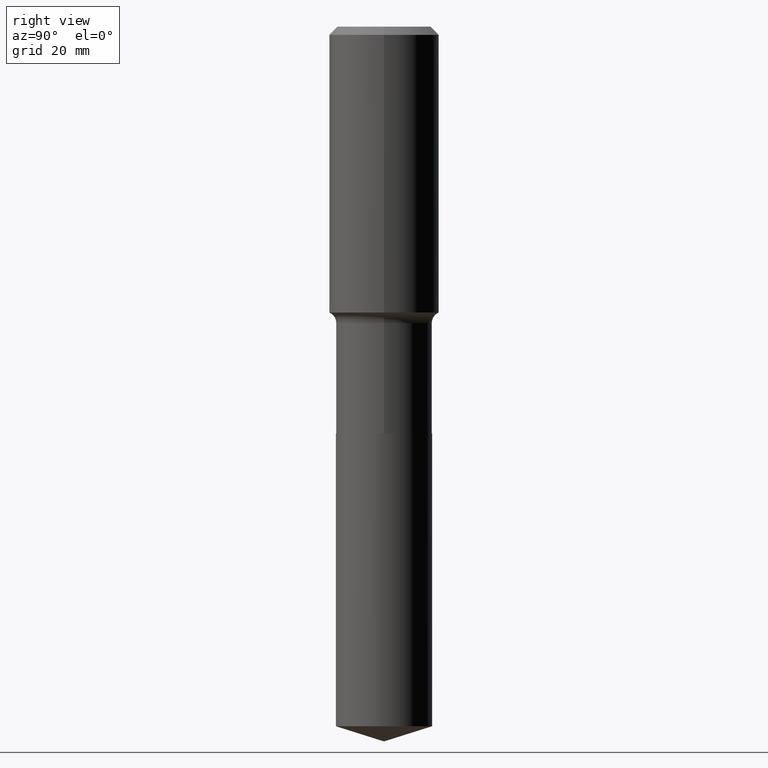
[diagram: clean part render]
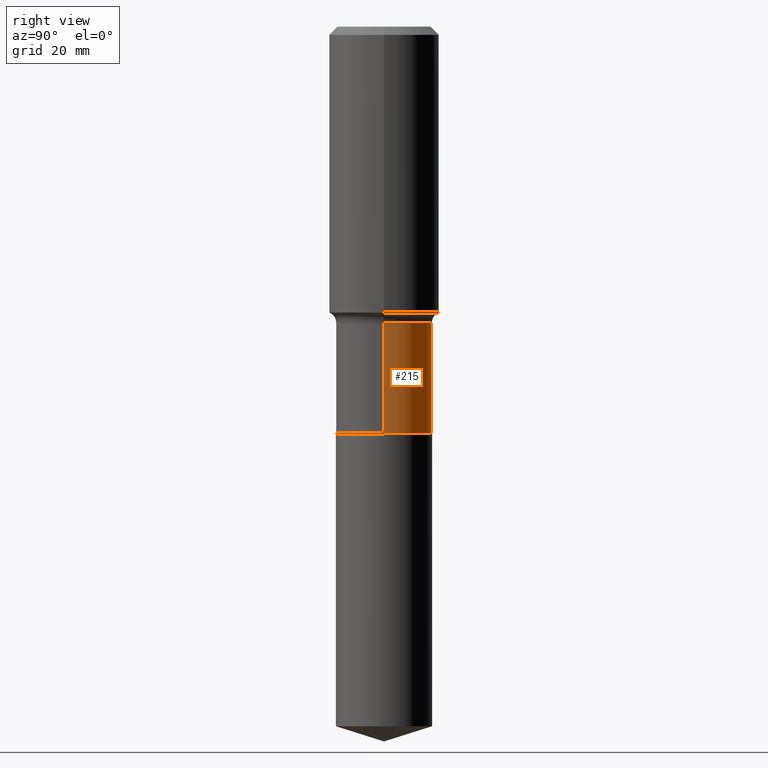
[diagram: same view with one face highlighted and labeled with its STEP entity id]
A machine part, right view. The second image highlights one B-rep face of the part: STEP entity #215.
In plain terms, the highlighted cylindrical surface (partial cylindrical patch) has radius 8.3337 mm, axis along (-0, 0, 1).
Its self-contained STEP definition (entity closure, byte-faithful):
#3 = CARTESIAN_POINT ( 'NONE',  ( -0.3280999999999998917, 2.331290716028887941E-15, -1.613902603112634153E-29 ) ) ;
#26 = CARTESIAN_POINT ( 'NONE',  ( -0.3280999999999998917, -6.043550997387220874E-15, -2.775699999999999612 ) ) ;
#33 = VECTOR ( 'NONE', #166, 39.37007874015748143 ) ;
#66 = CYLINDRICAL_SURFACE ( 'NONE', #185, 0.3280999999999998917 ) ;
#67 = EDGE_CURVE ( 'NONE', #274, #204, #330, .T. ) ;
#70 = DIRECTION ( 'NONE',  ( -2.445468806185136597E-29, 3.491481338843145583E-15, 1.000000000000000000 ) ) ;
#79 = DIRECTION ( 'NONE',  ( 1.000000000000000000, -6.982962677686269077E-15, 0.000000000000000000 ) ) ;
#97 = EDGE_CURVE ( 'NONE', #328, #450, #127, .T. ) ;
#116 = ORIENTED_EDGE ( 'NONE', *, *, #467, .F. ) ;
#127 = CIRCLE ( 'NONE', #187, 0.3280999999999998917 ) ;
#141 = CARTESIAN_POINT ( 'NONE',  ( -0.3280999999999998917, -6.043550997387220874E-15, -2.021599999999999397 ) ) ;
#150 = DIRECTION ( 'NONE',  ( -2.445468806185136597E-29, 3.491481338843145583E-15, 1.000000000000000000 ) ) ;
#158 = ORIENTED_EDGE ( 'NONE', *, *, #67, .T. ) ;
#166 = DIRECTION ( 'NONE',  ( -2.445468806185136877E-29, 3.491481338843145188E-15, 1.000000000000000000 ) ) ;
#175 = CARTESIAN_POINT ( 'NONE',  ( 6.787887765328082633E-29, -9.691304752226917509E-15, -2.775699999999999612 ) ) ;
#185 = AXIS2_PLACEMENT_3D ( 'NONE', #442, #70, #225 ) ;
#187 = AXIS2_PLACEMENT_3D ( 'NONE', #290, #150, #79 ) ;
#204 = VERTEX_POINT ( 'NONE', #26 ) ;
#215 = ADVANCED_FACE ( 'NONE', ( #358 ), #66, .T. ) ;
#225 = DIRECTION ( 'NONE',  ( 1.000000000000000000, -6.982962677686267499E-15, 4.876176775795935793E-29 ) ) ;
#245 = DIRECTION ( 'NONE',  ( -2.445468806185136597E-29, 3.491481338843145583E-15, 1.000000000000000000 ) ) ;
#264 = LINE ( 'NONE', #3, #482 ) ;
#274 = VERTEX_POINT ( 'NONE', #405 ) ;
#284 = AXIS2_PLACEMENT_3D ( 'NONE', #175, #245, #313 ) ;
#290 = CARTESIAN_POINT ( 'NONE',  ( 4.943759738583870671E-29, -7.058378674605300908E-15, -2.021599999999999397 ) ) ;
#306 = EDGE_LOOP ( 'NONE', ( #158, #371, #433, #116 ) ) ;
#311 = DIRECTION ( 'NONE',  ( -2.445468806185136877E-29, 3.491481338843145188E-15, 1.000000000000000000 ) ) ;
#313 = DIRECTION ( 'NONE',  ( 1.000000000000000000, -6.982962677686266711E-15, 0.000000000000000000 ) ) ;
#328 = VERTEX_POINT ( 'NONE', #340 ) ;
#330 = CIRCLE ( 'NONE', #284, 0.3280999999999998917 ) ;
#335 = CARTESIAN_POINT ( 'NONE',  ( 0.3280999999999998917, -2.291110054548863720E-15, 1.599873600138646028E-29 ) ) ;
#340 = CARTESIAN_POINT ( 'NONE',  ( 0.3280999999999998917, -9.349488729154165811E-15, -2.021599999999999397 ) ) ;
#341 = LINE ( 'NONE', #335, #33 ) ;
#347 = EDGE_CURVE ( 'NONE', #204, #450, #264, .T. ) ;
#358 = FACE_OUTER_BOUND ( 'NONE', #306, .T. ) ;
#371 = ORIENTED_EDGE ( 'NONE', *, *, #347, .T. ) ;
#405 = CARTESIAN_POINT ( 'NONE',  ( 0.3280999999999998917, -1.198241480677577926E-14, -2.775699999999999612 ) ) ;
#433 = ORIENTED_EDGE ( 'NONE', *, *, #97, .F. ) ;
#442 = CARTESIAN_POINT ( 'NONE',  ( 0.000000000000000000, 0.000000000000000000, 0.000000000000000000 ) ) ;
#450 = VERTEX_POINT ( 'NONE', #141 ) ;
#467 = EDGE_CURVE ( 'NONE', #274, #328, #341, .T. ) ;
#482 = VECTOR ( 'NONE', #311, 39.37007874015748143 ) ;